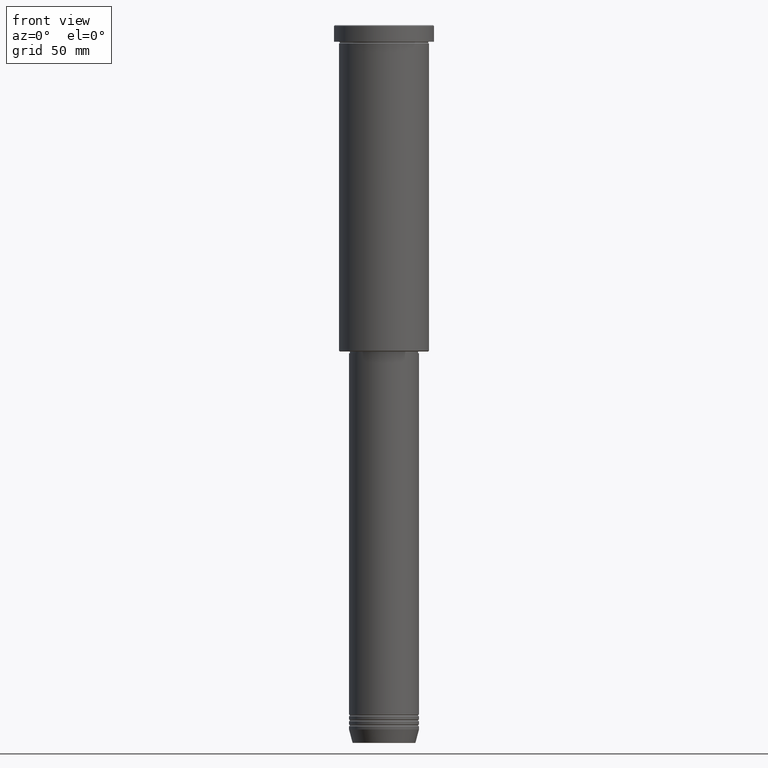
[diagram: clean part render]
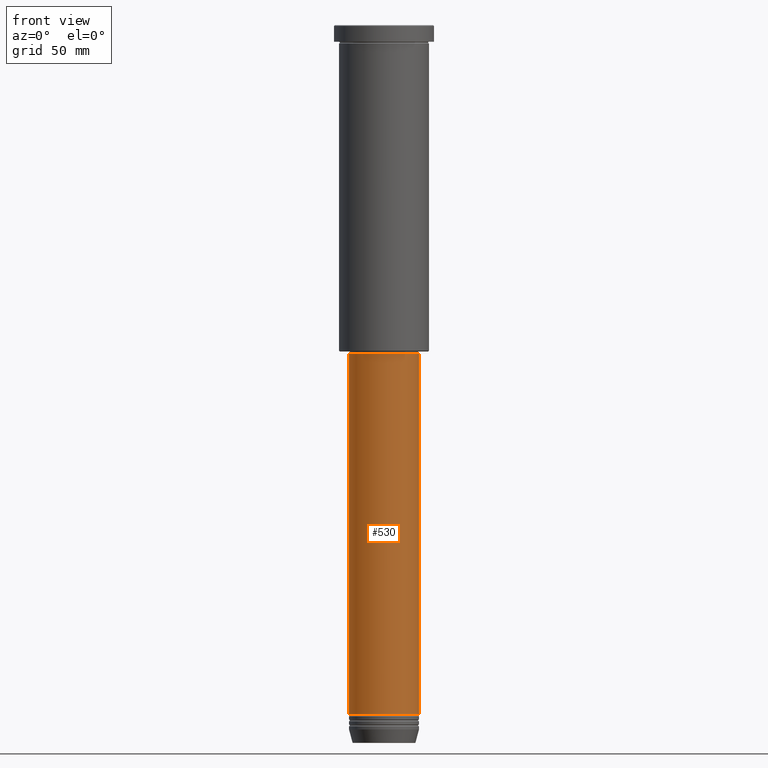
[diagram: same view with one face highlighted and labeled with its STEP entity id]
A machine part, front view. The second image highlights one B-rep face of the part: STEP entity #530.
In plain terms, the highlighted cylindrical surface (edge-blend (fillet) strip) has radius 21 mm, axis along (-0, -0, 1).
Its self-contained STEP definition (entity closure, byte-faithful):
#51 = DIRECTION ( 'NONE',  ( -0.000000000000000000, -0.000000000000000000, 1.000000000000000000 ) ) ;
#59 = CARTESIAN_POINT ( 'NONE',  ( 0.000000000000000000, 0.000000000000000000, 0.000000000000000000 ) ) ;
#102 = CARTESIAN_POINT ( 'NONE',  ( -21.00000000000000000, 2.571758278209441661E-15, -414.0000000000000000 ) ) ;
#116 = DIRECTION ( 'NONE',  ( 1.000000000000000000, 0.000000000000000000, 0.000000000000000000 ) ) ;
#137 = ORIENTED_EDGE ( 'NONE', *, *, #827, .F. ) ;
#169 = CARTESIAN_POINT ( 'NONE',  ( -21.00000000000000000, 2.571758278209441661E-15, 0.000000000000000000 ) ) ;
#250 = FACE_OUTER_BOUND ( 'NONE', #1152, .T. ) ;
#265 = VERTEX_POINT ( 'NONE', #777 ) ;
#280 = LINE ( 'NONE', #1005, #420 ) ;
#298 = AXIS2_PLACEMENT_3D ( 'NONE', #1113, #559, #637 ) ;
#365 = CIRCLE ( 'NONE', #520, 21.00000000000000000 ) ;
#396 = ORIENTED_EDGE ( 'NONE', *, *, #1004, .T. ) ;
#420 = VECTOR ( 'NONE', #814, 1000.000000000000000 ) ;
#432 = EDGE_CURVE ( 'NONE', #625, #265, #365, .T. ) ;
#476 = VERTEX_POINT ( 'NONE', #102 ) ;
#520 = AXIS2_PLACEMENT_3D ( 'NONE', #663, #921, #116 ) ;
#530 = ADVANCED_FACE ( 'NONE', ( #250 ), #962, .T. ) ;
#559 = DIRECTION ( 'NONE',  ( -0.000000000000000000, -0.000000000000000000, 1.000000000000000000 ) ) ;
#595 = VECTOR ( 'NONE', #740, 1000.000000000000000 ) ;
#625 = VERTEX_POINT ( 'NONE', #1137 ) ;
#637 = DIRECTION ( 'NONE',  ( 1.000000000000000000, 0.000000000000000000, 0.000000000000000000 ) ) ;
#663 = CARTESIAN_POINT ( 'NONE',  ( 0.000000000000000000, 0.000000000000000000, -196.9999999999999147 ) ) ;
#737 = VERTEX_POINT ( 'NONE', #1076 ) ;
#740 = DIRECTION ( 'NONE',  ( -0.000000000000000000, -0.000000000000000000, 1.000000000000000000 ) ) ;
#777 = CARTESIAN_POINT ( 'NONE',  ( 21.00000000000000000, 0.000000000000000000, -196.9999999999999147 ) ) ;
#787 = CIRCLE ( 'NONE', #298, 21.00000000000000000 ) ;
#814 = DIRECTION ( 'NONE',  ( -0.000000000000000000, -0.000000000000000000, 1.000000000000000000 ) ) ;
#827 = EDGE_CURVE ( 'NONE', #476, #625, #994, .T. ) ;
#871 = DIRECTION ( 'NONE',  ( 1.000000000000000000, 0.000000000000000000, 0.000000000000000000 ) ) ;
#921 = DIRECTION ( 'NONE',  ( -0.000000000000000000, -0.000000000000000000, 1.000000000000000000 ) ) ;
#962 = CYLINDRICAL_SURFACE ( 'NONE', #1162, 21.00000000000000000 ) ;
#981 = EDGE_CURVE ( 'NONE', #737, #265, #280, .T. ) ;
#994 = LINE ( 'NONE', #169, #595 ) ;
#996 = ORIENTED_EDGE ( 'NONE', *, *, #981, .T. ) ;
#1004 = EDGE_CURVE ( 'NONE', #476, #737, #787, .T. ) ;
#1005 = CARTESIAN_POINT ( 'NONE',  ( 21.00000000000000000, 0.000000000000000000, 0.000000000000000000 ) ) ;
#1033 = ORIENTED_EDGE ( 'NONE', *, *, #432, .F. ) ;
#1076 = CARTESIAN_POINT ( 'NONE',  ( 21.00000000000000000, 0.000000000000000000, -414.0000000000000000 ) ) ;
#1113 = CARTESIAN_POINT ( 'NONE',  ( 0.000000000000000000, 0.000000000000000000, -414.0000000000000000 ) ) ;
#1137 = CARTESIAN_POINT ( 'NONE',  ( -21.00000000000000000, 2.571758278209441661E-15, -196.9999999999999147 ) ) ;
#1152 = EDGE_LOOP ( 'NONE', ( #137, #396, #996, #1033 ) ) ;
#1162 = AXIS2_PLACEMENT_3D ( 'NONE', #59, #51, #871 ) ;